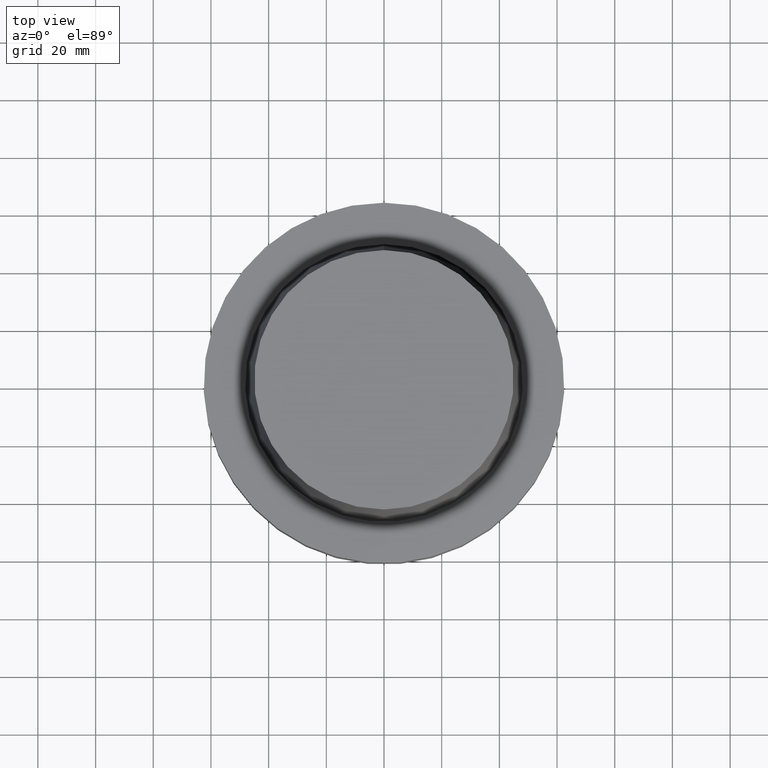
[diagram: clean part render]
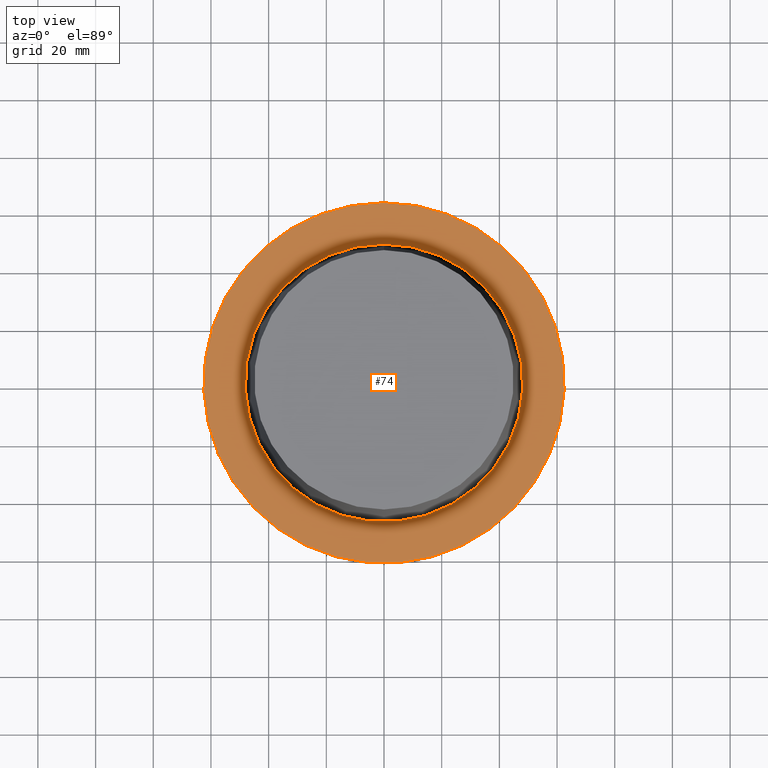
[diagram: same view with one face highlighted and labeled with its STEP entity id]
A machine part, top view. The second image highlights one B-rep face of the part: STEP entity #74.
In plain terms, the highlighted planar face has unit normal (-0, -0, 1).
Its self-contained STEP definition (entity closure, byte-faithful):
#74=ADVANCED_FACE('Unnamed[1]',(#189,#190),#191,.T.);
#79=EDGE_CURVE('Unnamed[1]',#198,#198,#199,.T.);
#132=EDGE_CURVE('Unnamed[1]',#278,#278,#279,.T.);
#189=FACE_OUTER_BOUND('',#343,.T.);
#190=FACE_BOUND('',#344,.T.);
#191=PLANE('',#345);
#198=VERTEX_POINT('',#354);
#199=CIRCLE('',#355,48.1342525050097);
#278=VERTEX_POINT('',#455);
#279=CIRCLE('',#456,62.5000000000002);
#343=EDGE_LOOP('',(#517));
#344=EDGE_LOOP('',(#518));
#345=AXIS2_PLACEMENT_3D('',#519,#520,#521);
#354=CARTESIAN_POINT('',(3.88342032297484E-029,48.1342525050097,-6.38005254174039E-013));
#355=AXIS2_PLACEMENT_3D('',#528,#529,#530);
#455=CARTESIAN_POINT('',(-5.58935713239973E-030,62.5000000000002,8.63540424946709E-014));
#456=AXIS2_PLACEMENT_3D('',#614,#615,#616);
#517=ORIENTED_EDGE('',*,*,#132,.F.);
#518=ORIENTED_EDGE('',*,*,#79,.T.);
#519=CARTESIAN_POINT('',(1.66224230486744E-029,55.317126252505,-2.75825605839684E-013));
#520=DIRECTION('',(-6.12323399573677E-017,-5.04226666187264E-014,1.0));
#521=DIRECTION('',(3.09232501668564E-030,-1.0,-5.04226666187264E-014));
#528=CARTESIAN_POINT('',(3.91573749152705E-029,7.83147498305409E-029,-6.3948846218409E-013));
#529=DIRECTION('',(6.12323399573677E-017,1.22464679914735E-016,-1.0));
#530=DIRECTION('',(-1.23259516440783E-032,1.0,1.22464679914735E-016));
#614=CARTESIAN_POINT('',(-5.22098332203606E-030,-1.04419666440721E-029,8.5265128291212E-014));
#615=DIRECTION('',(6.12323399573677E-017,1.22464679914735E-016,-1.0));
#616=DIRECTION('',(-1.23259516440783E-032,1.0,1.22464679914735E-016));